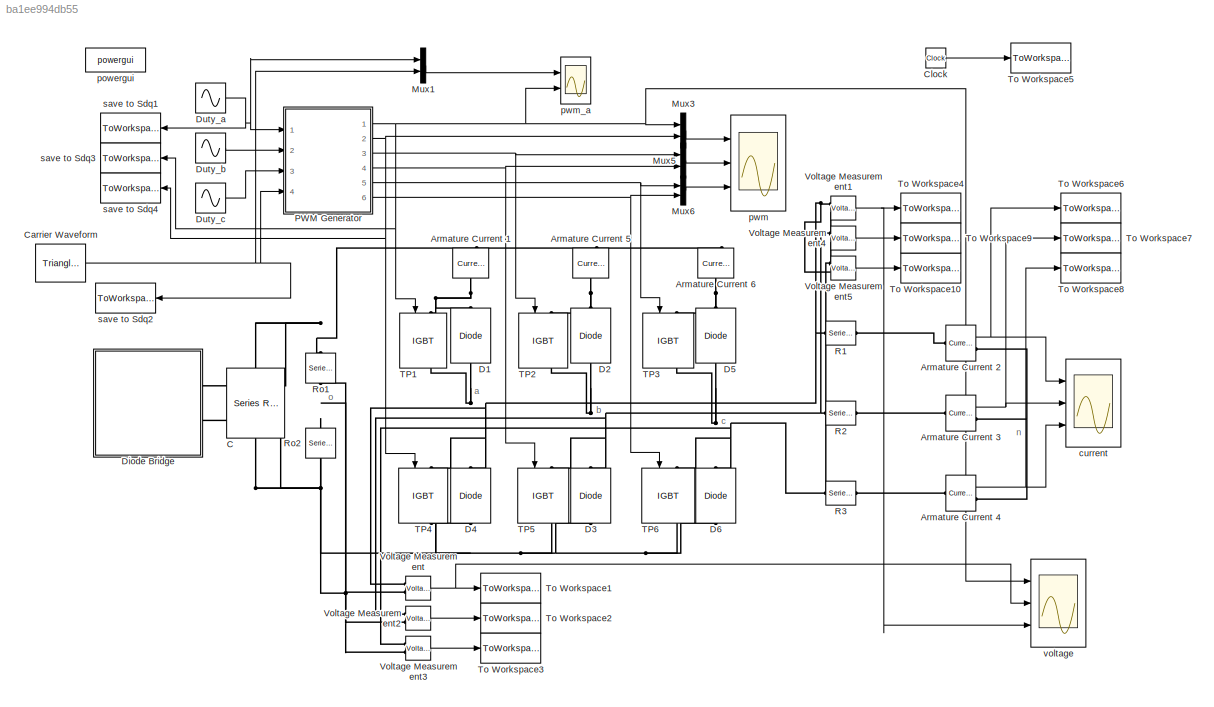
MODEL slx_ba1ee994db55
KIND model
CONFIG AbsTol = auto
CONFIG EnableMultiTasking = on
CONFIG FixedStep = auto
CONFIG MaxStep = auto
CONFIG MinStep = auto
CONFIG RelTol = 1e-3
CONFIG SampleTimeConstraint = Unconstrained
CONFIG SolverName = ode23tb
CONFIG StartTime = 0.0
CONFIG StopTime = 0.2
BLOCK [Reference] Armature Current 1  REF=powerlib/Measurements/Current Measurement
  AttributesFormatString = \n
  NameLocation = left
  Ports = [0, 1, 0, 0, 0, 1, 1]
  SourceBlock = powerlib/Measurements/Current Measurement
  SourceProductBaseCode = PS
  SourceType = Current Measurement
  Tag = PoWeRsYsTeMmEaSuReMeNt
BLOCK [Reference] Armature Current 2  REF=powerlib/Measurements/Current Measurement
  AttributesFormatString = \n
  Ports = [0, 1, 0, 0, 0, 1, 1]
  SourceBlock = powerlib/Measurements/Current Measurement
  SourceProductBaseCode = PS
  SourceType = Current Measurement
  Tag = PoWeRsYsTeMmEaSuReMeNt
BLOCK [Reference] Armature Current 3  REF=powerlib/Measurements/Current Measurement
  AttributesFormatString = \n
  Ports = [0, 1, 0, 0, 0, 1, 1]
  SourceBlock = powerlib/Measurements/Current Measurement
  SourceProductBaseCode = PS
  SourceType = Current Measurement
  Tag = PoWeRsYsTeMmEaSuReMeNt
BLOCK [Reference] Armature Current 4  REF=powerlib/Measurements/Current Measurement
  AttributesFormatString = \n
  Ports = [0, 1, 0, 0, 0, 1, 1]
  SourceBlock = powerlib/Measurements/Current Measurement
  SourceProductBaseCode = PS
  SourceType = Current Measurement
  Tag = PoWeRsYsTeMmEaSuReMeNt
BLOCK [Reference] Armature Current 5  REF=powerlib/Measurements/Current Measurement
  AttributesFormatString = \n
  NameLocation = left
  Ports = [0, 1, 0, 0, 0, 1, 1]
  SourceBlock = powerlib/Measurements/Current Measurement
  SourceProductBaseCode = PS
  SourceType = Current Measurement
  Tag = PoWeRsYsTeMmEaSuReMeNt
BLOCK [Reference] Armature Current 6  REF=powerlib/Measurements/Current Measurement
  AttributesFormatString = \n
  NameLocation = left
  Ports = [0, 1, 0, 0, 0, 1, 1]
  SourceBlock = powerlib/Measurements/Current Measurement
  SourceProductBaseCode = PS
  SourceType = Current Measurement
  Tag = PoWeRsYsTeMmEaSuReMeNt
BLOCK [Reference] C  REF=powerlib/Elements/Series RLC Branch
  NameLocation = left
  Ports = [0, 0, 0, 0, 0, 1, 1]
  SourceBlock = powerlib/Elements/Series RLC Branch
  SourceProductBaseCode = PS
  SourceType = Series RLC Branch
BLOCK [Reference] Carrier Waveform  REF=powerlib_meascontrol/Pulse & Signal
Generators/Triangle
Generator
  Ports = [0, 1]
  SourceBlock = powerlib_meascontrol/Pulse & Signal\nGenerators/Triangle\nGenerator
  SourceProductBaseCode = PS
  SourceType = Triangle Generator
BLOCK [Clock] Clock
BLOCK [Reference] D1  REF=powerlib/Power
Electronics/Diode
  NameLocation = left
  Ports = [0, 0, 0, 0, 0, 1, 1]
  SourceBlock = powerlib/Power\nElectronics/Diode
  SourceProductBaseCode = PS
  SourceType = Diode
BLOCK [Reference] D2  REF=powerlib/Power
Electronics/Diode
  NameLocation = left
  Ports = [0, 0, 0, 0, 0, 1, 1]
  SourceBlock = powerlib/Power\nElectronics/Diode
  SourceProductBaseCode = PS
  SourceType = Diode
BLOCK [Reference] D3  REF=powerlib/Power
Electronics/Diode
  NameLocation = left
  Ports = [0, 0, 0, 0, 0, 1, 1]
  SourceBlock = powerlib/Power\nElectronics/Diode
  SourceProductBaseCode = PS
  SourceType = Diode
BLOCK [Reference] D4  REF=powerlib/Power
Electronics/Diode
  NameLocation = left
  Ports = [0, 0, 0, 0, 0, 1, 1]
  SourceBlock = powerlib/Power\nElectronics/Diode
  SourceProductBaseCode = PS
  SourceType = Diode
BLOCK [Reference] D5  REF=powerlib/Power
Electronics/Diode
  NameLocation = left
  Ports = [0, 0, 0, 0, 0, 1, 1]
  SourceBlock = powerlib/Power\nElectronics/Diode
  SourceProductBaseCode = PS
  SourceType = Diode
BLOCK [Reference] D6  REF=powerlib/Power
Electronics/Diode
  NameLocation = left
  Ports = [0, 0, 0, 0, 0, 1, 1]
  SourceBlock = powerlib/Power\nElectronics/Diode
  SourceProductBaseCode = PS
  SourceType = Diode
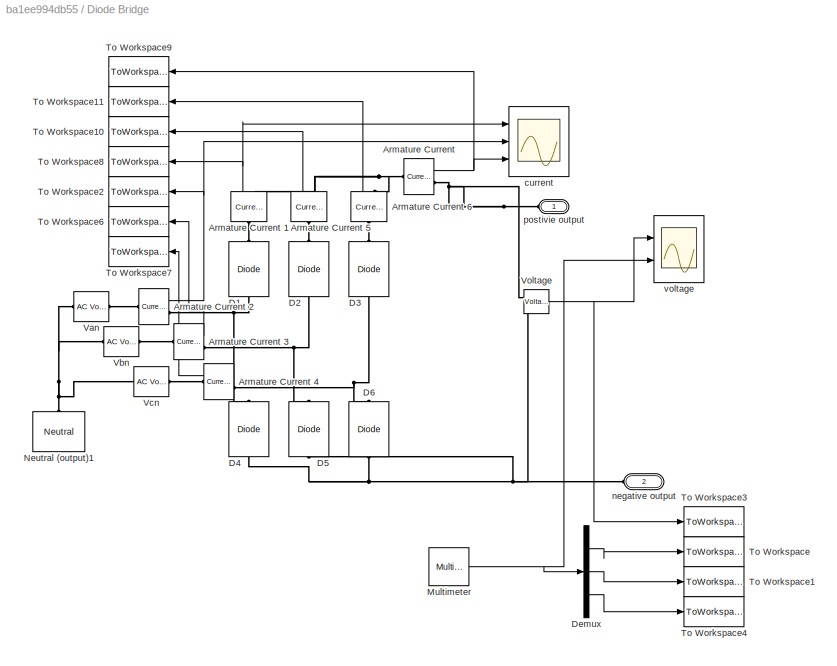
BLOCK [SubSystem] Diode Bridge
  Ports = [0, 0, 0, 0, 0, 2]
  RequestExecContextInheritance = off
BLOCK [Reference] Diode Bridge/Armature Current   REF=powerlib/Measurements/Current Measurement
  AttributesFormatString = \n
  Ports = [0, 1, 0, 0, 0, 1, 1]
  SourceBlock = powerlib/Measurements/Current Measurement
  SourceProductBaseCode = PS
  SourceType = Current Measurement
  Tag = PoWeRsYsTeMmEaSuReMeNt
BLOCK [Reference] Diode Bridge/Armature Current 1  REF=powerlib/Measurements/Current Measurement
  AttributesFormatString = \n
  NameLocation = left
  Ports = [0, 1, 0, 0, 0, 1, 1]
  SourceBlock = powerlib/Measurements/Current Measurement
  SourceProductBaseCode = PS
  SourceType = Current Measurement
  Tag = PoWeRsYsTeMmEaSuReMeNt
BLOCK [Reference] Diode Bridge/Armature Current 2  REF=powerlib/Measurements/Current Measurement
  AttributesFormatString = \n
  Ports = [0, 1, 0, 0, 0, 1, 1]
  SourceBlock = powerlib/Measurements/Current Measurement
  SourceProductBaseCode = PS
  SourceType = Current Measurement
  Tag = PoWeRsYsTeMmEaSuReMeNt
BLOCK [Reference] Diode Bridge/Armature Current 3  REF=powerlib/Measurements/Current Measurement
  AttributesFormatString = \n
  Ports = [0, 1, 0, 0, 0, 1, 1]
  SourceBlock = powerlib/Measurements/Current Measurement
  SourceProductBaseCode = PS
  SourceType = Current Measurement
  Tag = PoWeRsYsTeMmEaSuReMeNt
BLOCK [Reference] Diode Bridge/Armature Current 4  REF=powerlib/Measurements/Current Measurement
  AttributesFormatString = \n
  Ports = [0, 1, 0, 0, 0, 1, 1]
  SourceBlock = powerlib/Measurements/Current Measurement
  SourceProductBaseCode = PS
  SourceType = Current Measurement
  Tag = PoWeRsYsTeMmEaSuReMeNt
BLOCK [Reference] Diode Bridge/Armature Current 5  REF=powerlib/Measurements/Current Measurement
  AttributesFormatString = \n
  NameLocation = left
  Ports = [0, 1, 0, 0, 0, 1, 1]
  SourceBlock = powerlib/Measurements/Current Measurement
  SourceProductBaseCode = PS
  SourceType = Current Measurement
  Tag = PoWeRsYsTeMmEaSuReMeNt
BLOCK [Reference] Diode Bridge/Armature Current 6  REF=powerlib/Measurements/Current Measurement
  AttributesFormatString = \n
  NameLocation = left
  Ports = [0, 1, 0, 0, 0, 1, 1]
  SourceBlock = powerlib/Measurements/Current Measurement
  SourceProductBaseCode = PS
  SourceType = Current Measurement
  Tag = PoWeRsYsTeMmEaSuReMeNt
BLOCK [Reference] Diode Bridge/D1  REF=powerlib/Power
Electronics/Diode
  NameLocation = left
  Ports = [0, 0, 0, 0, 0, 1, 1]
  SourceBlock = powerlib/Power\nElectronics/Diode
  SourceProductBaseCode = PS
  SourceType = Diode
BLOCK [Reference] Diode Bridge/D2  REF=powerlib/Power
Electronics/Diode
  NameLocation = left
  Ports = [0, 0, 0, 0, 0, 1, 1]
  SourceBlock = powerlib/Power\nElectronics/Diode
  SourceProductBaseCode = PS
  SourceType = Diode
BLOCK [Reference] Diode Bridge/D3  REF=powerlib/Power
Electronics/Diode
  NameLocation = left
  Ports = [0, 0, 0, 0, 0, 1, 1]
  SourceBlock = powerlib/Power\nElectronics/Diode
  SourceProductBaseCode = PS
  SourceType = Diode
BLOCK [Reference] Diode Bridge/D4  REF=powerlib/Power
Electronics/Diode
  NameLocation = left
  Ports = [0, 0, 0, 0, 0, 1, 1]
  SourceBlock = powerlib/Power\nElectronics/Diode
  SourceProductBaseCode = PS
  SourceType = Diode
BLOCK [Reference] Diode Bridge/D5  REF=powerlib/Power
Electronics/Diode
  NameLocation = left
  Ports = [0, 0, 0, 0, 0, 1, 1]
  SourceBlock = powerlib/Power\nElectronics/Diode
  SourceProductBaseCode = PS
  SourceType = Diode
BLOCK [Reference] Diode Bridge/D6  REF=powerlib/Power
Electronics/Diode
  NameLocation = left
  Ports = [0, 0, 0, 0, 0, 1, 1]
  SourceBlock = powerlib/Power\nElectronics/Diode
  SourceProductBaseCode = PS
  SourceType = Diode
BLOCK [Demux] Diode Bridge/Demux
  DisplayOption = none
  Outputs = 3
  Ports = [1, 3]
BLOCK [Reference] Diode Bridge/Multimeter  REF=powerlib/Measurements/Multimeter
  Ports = [0, 1]
  SourceBlock = powerlib/Measurements/Multimeter
  SourceProductBaseCode = PS
  SourceType = MultimeterPSB
BLOCK [Reference] Diode Bridge/Neutral (output)1  REF=powerlib/Elements/Neutral
  AttributesFormatString = node %<NodeNumber>
  NameLocation = right
  Ports = [0, 0, 0, 0, 0, 1]
  SourceBlock = powerlib/Elements/Neutral
  SourceProductBaseCode = PS
  SourceType = Neutral
BLOCK [ToWorkspace] Diode Bridge/To Workspace
  MaxDataPoints = inf
  Ports = [1]
  SampleTime = 1e-4
  VariableName = Ean
BLOCK [ToWorkspace] Diode Bridge/To Workspace1
  MaxDataPoints = inf
  Ports = [1]
  SampleTime = 1e-4
  VariableName = Ebn
BLOCK [ToWorkspace] Diode Bridge/To Workspace10
  MaxDataPoints = inf
  Ports = [1]
  SampleTime = 1e-4
  VariableName = ID2
BLOCK [ToWorkspace] Diode Bridge/To Workspace11
  MaxDataPoints = inf
  Ports = [1]
  SampleTime = 1e-4
  VariableName = ID3
BLOCK [ToWorkspace] Diode Bridge/To Workspace2
  MaxDataPoints = inf
  Ports = [1]
  SampleTime = 1e-4
  VariableName = Ia
BLOCK [ToWorkspace] Diode Bridge/To Workspace3
  MaxDataPoints = inf
  Ports = [1]
  SampleTime = 1e-4
  VariableName = Vdc
BLOCK [ToWorkspace] Diode Bridge/To Workspace4
  MaxDataPoints = inf
  Ports = [1]
  SampleTime = 1e-4
  VariableName = Ecn
BLOCK [ToWorkspace] Diode Bridge/To Workspace6
  MaxDataPoints = inf
  Ports = [1]
  SampleTime = 1e-4
  VariableName = Ib
BLOCK [ToWorkspace] Diode Bridge/To Workspace7
  MaxDataPoints = inf
  Ports = [1]
  SampleTime = 1e-4
  VariableName = Ic
BLOCK [ToWorkspace] Diode Bridge/To Workspace8
  MaxDataPoints = inf
  Ports = [1]
  SampleTime = 1e-4
  VariableName = ID1
BLOCK [ToWorkspace] Diode Bridge/To Workspace9
  MaxDataPoints = inf
  Ports = [1]
  SampleTime = 1e-4
  VariableName = Idc
BLOCK [Reference] Diode Bridge/Van  REF=powerlib/Electrical
Sources/AC Voltage Source
  AttributesFormatString = \n
  Description = source block
  Ports = [0, 0, 0, 0, 0, 1, 1]
  SourceBlock = powerlib/Electrical\nSources/AC Voltage Source
  SourceProductBaseCode = PS
  SourceType = AC Voltage Source
BLOCK [Reference] Diode Bridge/Vbn  REF=powerlib/Electrical
Sources/AC Voltage Source
  AttributesFormatString = \n
  Description = source block
  Ports = [0, 0, 0, 0, 0, 1, 1]
  SourceBlock = powerlib/Electrical\nSources/AC Voltage Source
  SourceProductBaseCode = PS
  SourceType = AC Voltage Source
BLOCK [Reference] Diode Bridge/Vcn  REF=powerlib/Electrical
Sources/AC Voltage Source
  AttributesFormatString = \n
  Description = source block
  Ports = [0, 0, 0, 0, 0, 1, 1]
  SourceBlock = powerlib/Electrical\nSources/AC Voltage Source
  SourceProductBaseCode = PS
  SourceType = AC Voltage Source
BLOCK [Reference] Diode Bridge/Voltage   REF=powerlib/Measurements/Voltage Measurement
  Ports = [0, 1, 0, 0, 0, 2]
  SourceBlock = powerlib/Measurements/Voltage Measurement
  SourceProductBaseCode = PS
  SourceType = Voltage Measurement
BLOCK [Scope] Diode Bridge/current
  Floating = off
  NumInputPorts = 3
  Ports = [3]
  ScopeSpecificationString = Simulink.scopes.TimeScopeBlockCfg('CurrentConfiguration', extmgr.ConfigurationSet(extmgr.Configuration('Core','General UI',true),extmgr.Configuration('Core','Source UI',true),extmgr.Configuration('Sources','WiredSimulink',true,'DataLoggingVariableName','ScopeData1','DataLoggingSaveFormat','StructureWithTime','DataLoggingDecimation','1','DataLoggingDecimateData',true),extmgr.Configuration('Visuals'...<+2992ch>
BLOCK [PMIOPort] Diode Bridge/negative output
  Port = 2
  Side = Left
BLOCK [PMIOPort] Diode Bridge/postivie output
  Side = Left
BLOCK [Scope] Diode Bridge/voltage
  Floating = off
  NumInputPorts = 2
  Ports = [2]
  ScopeSpecificationString = Simulink.scopes.TimeScopeBlockCfg('CurrentConfiguration', extmgr.ConfigurationSet(extmgr.Configuration('Core','General UI',true),extmgr.Configuration('Core','Source UI',true),extmgr.Configuration('Sources','WiredSimulink',true,'DataLoggingSaveFormat','StructureWithTime','DataLoggingDecimation','1','DataLoggingDecimateData',true),extmgr.Configuration('Visuals','Time Domain',true,'SerializedDisplays...<+2287ch>
BLOCK [Sin] Duty_a
  Amplitude = 0.5
  Frequency = 200*pi
  Ports = [0, 1]
  SampleTime = 0
BLOCK [Sin] Duty_b
  Amplitude = 0.5
  Frequency = 200*pi
  Phase = -2*pi/3
  Ports = [0, 1]
  SampleTime = 0
BLOCK [Sin] Duty_c
  Amplitude = 0.5
  Frequency = 200*pi
  Phase = 2*pi/3
  Ports = [0, 1]
  SampleTime = 0
BLOCK [Mux] Mux1
  DisplayOption = bar
  Inputs = 2
  Ports = [2, 1]
BLOCK [Mux] Mux3
  DisplayOption = bar
  Inputs = 2
  Ports = [2, 1]
BLOCK [Mux] Mux5
  DisplayOption = bar
  Inputs = 2
  Ports = [2, 1]
BLOCK [Mux] Mux6
  DisplayOption = bar
  Inputs = 2
  Ports = [2, 1]
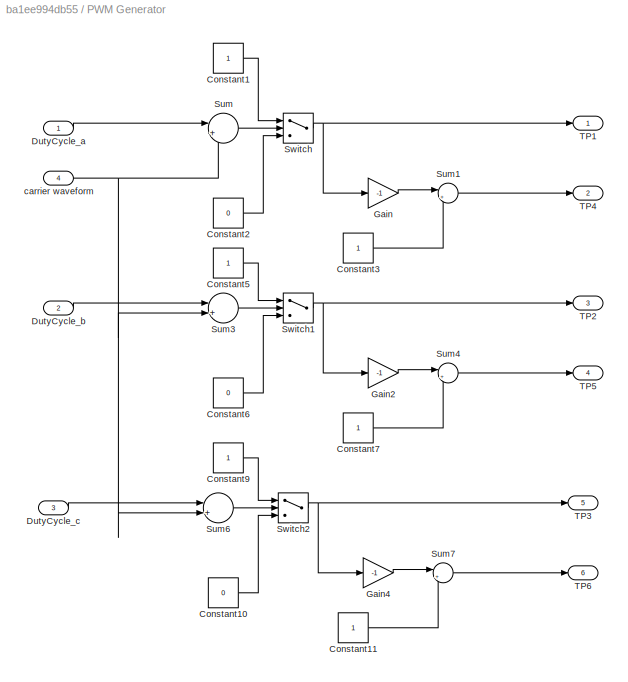
BLOCK [SubSystem] PWM Generator
  Ports = [4, 6]
  RequestExecContextInheritance = off
BLOCK [Constant] PWM Generator/Constant1
BLOCK [Constant] PWM Generator/Constant10
  Value = 0
BLOCK [Constant] PWM Generator/Constant11
BLOCK [Constant] PWM Generator/Constant2
  Value = 0
BLOCK [Constant] PWM Generator/Constant3
BLOCK [Constant] PWM Generator/Constant5
BLOCK [Constant] PWM Generator/Constant6
  Value = 0
BLOCK [Constant] PWM Generator/Constant7
BLOCK [Constant] PWM Generator/Constant9
BLOCK [Inport] PWM Generator/DutyCycle_a
BLOCK [Inport] PWM Generator/DutyCycle_b
  Port = 2
BLOCK [Inport] PWM Generator/DutyCycle_c
  Port = 3
BLOCK [Gain] PWM Generator/Gain
  Gain = -1
  OutDataTypeStr = Inherit: Same as input
  ParamDataTypeStr = Inherit: Same as input
  SaturateOnIntegerOverflow = on
BLOCK [Gain] PWM Generator/Gain2
  Gain = -1
  OutDataTypeStr = Inherit: Same as input
  ParamDataTypeStr = Inherit: Same as input
  SaturateOnIntegerOverflow = on
BLOCK [Gain] PWM Generator/Gain4
  Gain = -1
  OutDataTypeStr = Inherit: Same as input
  ParamDataTypeStr = Inherit: Same as input
  SaturateOnIntegerOverflow = on
BLOCK [Sum] PWM Generator/Sum
  Inputs = |+-
  Ports = [2, 1]
  SaturateOnIntegerOverflow = on
BLOCK [Sum] PWM Generator/Sum1
  Inputs = |++
  Ports = [2, 1]
  SaturateOnIntegerOverflow = on
BLOCK [Sum] PWM Generator/Sum3
  Inputs = |+-
  Ports = [2, 1]
  SaturateOnIntegerOverflow = on
BLOCK [Sum] PWM Generator/Sum4
  Inputs = |++
  Ports = [2, 1]
  SaturateOnIntegerOverflow = on
BLOCK [Sum] PWM Generator/Sum6
  Inputs = |+-
  Ports = [2, 1]
  SaturateOnIntegerOverflow = on
BLOCK [Sum] PWM Generator/Sum7
  Inputs = |++
  Ports = [2, 1]
  SaturateOnIntegerOverflow = on
BLOCK [Switch] PWM Generator/Switch
  Criteria = u2 > Threshold
  InputSameDT = off
BLOCK [Switch] PWM Generator/Switch1
  Criteria = u2 > Threshold
  InputSameDT = off
BLOCK [Switch] PWM Generator/Switch2
  Criteria = u2 > Threshold
  InputSameDT = off
BLOCK [Outport] PWM Generator/TP1
BLOCK [Outport] PWM Generator/TP2
  Port = 3
BLOCK [Outport] PWM Generator/TP3
  Port = 5
BLOCK [Outport] PWM Generator/TP4
  Port = 2
BLOCK [Outport] PWM Generator/TP5
  Port = 4
BLOCK [Outport] PWM Generator/TP6
  Port = 6
BLOCK [Inport] PWM Generator/carrier waveform
  Port = 4
BLOCK [Reference] R1  REF=powerlib/Elements/Series RLC Branch
  NameLocation = top
  Ports = [0, 0, 0, 0, 0, 1, 1]
  SourceBlock = powerlib/Elements/Series RLC Branch
  SourceProductBaseCode = PS
  SourceType = Series RLC Branch
BLOCK [Reference] R2  REF=powerlib/Elements/Series RLC Branch
  NameLocation = top
  Ports = [0, 0, 0, 0, 0, 1, 1]
  SourceBlock = powerlib/Elements/Series RLC Branch
  SourceProductBaseCode = PS
  SourceType = Series RLC Branch
BLOCK [Reference] R3  REF=powerlib/Elements/Series RLC Branch
  NameLocation = top
  Ports = [0, 0, 0, 0, 0, 1, 1]
  SourceBlock = powerlib/Elements/Series RLC Branch
  SourceProductBaseCode = PS
  SourceType = Series RLC Branch
BLOCK [Reference] Ro1  REF=powerlib/Elements/Series RLC Branch
  NameLocation = left
  Ports = [0, 0, 0, 0, 0, 1, 1]
  SourceBlock = powerlib/Elements/Series RLC Branch
  SourceProductBaseCode = PS
  SourceType = Series RLC Branch
BLOCK [Reference] Ro2  REF=powerlib/Elements/Series RLC Branch
  NameLocation = left
  Ports = [0, 0, 0, 0, 0, 1, 1]
  SourceBlock = powerlib/Elements/Series RLC Branch
  SourceProductBaseCode = PS
  SourceType = Series RLC Branch
BLOCK [Reference] TP1  REF=powerlib/Power
Electronics/IGBT
  NameLocation = left
  Ports = [1, 1, 0, 0, 0, 1, 1]
  SourceBlock = powerlib/Power\nElectronics/IGBT
  SourceProductBaseCode = PS
  SourceType = IGBT
BLOCK [Reference] TP2  REF=powerlib/Power
Electronics/IGBT
  NameLocation = left
  Ports = [1, 1, 0, 0, 0, 1, 1]
  SourceBlock = powerlib/Power\nElectronics/IGBT
  SourceProductBaseCode = PS
  SourceType = IGBT
BLOCK [Reference] TP3  REF=powerlib/Power
Electronics/IGBT
  NameLocation = left
  Ports = [1, 1, 0, 0, 0, 1, 1]
  SourceBlock = powerlib/Power\nElectronics/IGBT
  SourceProductBaseCode = PS
  SourceType = IGBT
BLOCK [Reference] TP4  REF=powerlib/Power
Electronics/IGBT
  NameLocation = left
  Ports = [1, 1, 0, 0, 0, 1, 1]
  SourceBlock = powerlib/Power\nElectronics/IGBT
  SourceProductBaseCode = PS
  SourceType = IGBT
BLOCK [Reference] TP5  REF=powerlib/Power
Electronics/IGBT
  NameLocation = left
  Ports = [1, 1, 0, 0, 0, 1, 1]
  SourceBlock = powerlib/Power\nElectronics/IGBT
  SourceProductBaseCode = PS
  SourceType = IGBT
BLOCK [Reference] TP6  REF=powerlib/Power
Electronics/IGBT
  NameLocation = left
  Ports = [1, 1, 0, 0, 0, 1, 1]
  SourceBlock = powerlib/Power\nElectronics/IGBT
  SourceProductBaseCode = PS
  SourceType = IGBT
BLOCK [ToWorkspace] To Workspace1
  MaxDataPoints = inf
  Ports = [1]
  SampleTime = 1e-5
  VariableName = Vao
BLOCK [ToWorkspace] To Workspace10
  MaxDataPoints = inf
  Ports = [1]
  SampleTime = 1e-5
  VariableName = Vca
BLOCK [ToWorkspace] To Workspace2
  MaxDataPoints = inf
  Ports = [1]
  SampleTime = 1e-5
  VariableName = Vbo
BLOCK [ToWorkspace] To Workspace3
  MaxDataPoints = inf
  Ports = [1]
  SampleTime = 1e-5
  VariableName = Vco
BLOCK [ToWorkspace] To Workspace4
  MaxDataPoints = inf
  Ports = [1]
  SampleTime = 1e-5
  VariableName = Vab
BLOCK [ToWorkspace] To Workspace5
  MaxDataPoints = inf
  Ports = [1]
  SampleTime = 1e-5
  VariableName = time
BLOCK [ToWorkspace] To Workspace6
  MaxDataPoints = inf
  Ports = [1]
  SampleTime = 1e-5
  VariableName = ia
BLOCK [ToWorkspace] To Workspace7
  MaxDataPoints = inf
  Ports = [1]
  SampleTime = 1e-5
  VariableName = ib
BLOCK [ToWorkspace] To Workspace8
  MaxDataPoints = inf
  Ports = [1]
  SampleTime = 1e-5
  VariableName = ic
BLOCK [ToWorkspace] To Workspace9
  MaxDataPoints = inf
  Ports = [1]
  SampleTime = 1e-5
  VariableName = Vbc
BLOCK [Reference] Voltage Measurement  REF=powerlib/Measurements/Voltage Measurement
  Ports = [0, 1, 0, 0, 0, 2]
  SourceBlock = powerlib/Measurements/Voltage Measurement
  SourceProductBaseCode = PS
  SourceType = Voltage Measurement
BLOCK [Reference] Voltage Measurement1  REF=powerlib/Measurements/Voltage Measurement
  Ports = [0, 1, 0, 0, 0, 2]
  SourceBlock = powerlib/Measurements/Voltage Measurement
  SourceProductBaseCode = PS
  SourceType = Voltage Measurement
BLOCK [Reference] Voltage Measurement2  REF=powerlib/Measurements/Voltage Measurement
  Ports = [0, 1, 0, 0, 0, 2]
  SourceBlock = powerlib/Measurements/Voltage Measurement
  SourceProductBaseCode = PS
  SourceType = Voltage Measurement
BLOCK [Reference] Voltage Measurement3  REF=powerlib/Measurements/Voltage Measurement
  Ports = [0, 1, 0, 0, 0, 2]
  SourceBlock = powerlib/Measurements/Voltage Measurement
  SourceProductBaseCode = PS
  SourceType = Voltage Measurement
BLOCK [Reference] Voltage Measurement4  REF=powerlib/Measurements/Voltage Measurement
  Ports = [0, 1, 0, 0, 0, 2]
  SourceBlock = powerlib/Measurements/Voltage Measurement
  SourceProductBaseCode = PS
  SourceType = Voltage Measurement
BLOCK [Reference] Voltage Measurement5  REF=powerlib/Measurements/Voltage Measurement
  Ports = [0, 1, 0, 0, 0, 2]
  SourceBlock = powerlib/Measurements/Voltage Measurement
  SourceProductBaseCode = PS
  SourceType = Voltage Measurement
BLOCK [Scope] current
  Floating = off
  NumInputPorts = 3
  Ports = [3]
  ScopeSpecificationString = Simulink.scopes.TimeScopeBlockCfg('CurrentConfiguration', extmgr.ConfigurationSet(extmgr.Configuration('Core','General UI',true),extmgr.Configuration('Core','Source UI',true),extmgr.Configuration('Sources','WiredSimulink',true,'DataLogging',true,'DataLoggingVariableName','PhaseCurrent','DataLoggingSaveFormat','StructureWithTime','DataLoggingDecimation','1','DataLoggingDecimateData',true),extmgr.Co...<+3092ch>
BLOCK [Reference] powergui  REF=powerlib/powergui
  Ports = []
  SourceBlock = powerlib/powergui
  SourceProductBaseCode = PS
  SourceType = PSB option menu block
BLOCK [Scope] pwm
  Floating = off
  NameLocation = top
  NumInputPorts = 3
  Ports = [3]
  ScopeSpecificationString = Simulink.scopes.TimeScopeBlockCfg('CurrentConfiguration', extmgr.ConfigurationSet(extmgr.Configuration('Core','General UI',true),extmgr.Configuration('Core','Source UI',true),extmgr.Configuration('Sources','WiredSimulink',true,'DataLoggingVariableName','pwmsignal','DataLoggingSaveFormat','StructureWithTime','DataLoggingDecimation','1','DataLoggingDecimateData',true),extmgr.Configuration('Visuals',...<+3107ch>
BLOCK [Scope] pwm_a
  Floating = off
  NameLocation = top
  NumInputPorts = 2
  Ports = [2]
  ScopeSpecificationString = Simulink.scopes.TimeScopeBlockCfg('CurrentConfiguration', extmgr.ConfigurationSet(extmgr.Configuration('Core','General UI',true),extmgr.Configuration('Core','Source UI',true),extmgr.Configuration('Sources','WiredSimulink',true,'DataLoggingVariableName','pwmsignal1','DataLoggingSaveFormat','StructureWithTime','DataLoggingDecimation','1','DataLoggingDecimateData',true),extmgr.Configuration('Visuals'...<+2393ch>
BLOCK [ToWorkspace] save to Sdq1
  MaxDataPoints = inf
  Ports = [1]
  SampleTime = 1e-5
  VariableName = dutya
BLOCK [ToWorkspace] save to Sdq2
  MaxDataPoints = inf
  Ports = [1]
  SampleTime = 1e-5
  VariableName = carrier
BLOCK [ToWorkspace] save to Sdq3
  MaxDataPoints = inf
  Ports = [1]
  SampleTime = 1e-5
  VariableName = TP1
BLOCK [ToWorkspace] save to Sdq4
  MaxDataPoints = inf
  Ports = [1]
  SampleTime = 1e-5
  VariableName = TP4
BLOCK [Scope] voltage
  Floating = off
  NumInputPorts = 3
  Ports = [3]
  ScopeSpecificationString = Simulink.scopes.TimeScopeBlockCfg('CurrentConfiguration', extmgr.ConfigurationSet(extmgr.Configuration('Core','General UI',true),extmgr.Configuration('Core','Source UI',true),extmgr.Configuration('Sources','WiredSimulink',true,'DataLogging',true,'DataLoggingVariableName','LineVoltage','DataLoggingSaveFormat','StructureWithTime','DataLoggingDecimation','1','DataLoggingDecimateData',true),extmgr.Con...<+3054ch>
ANNOTATION (root): a
ANNOTATION (root): b
ANNOTATION (root): c
ANNOTATION (root): n
ANNOTATION (root): o
NET Armature Current 2:1 -> To Workspace6:1, current:1
NET Armature Current 3:1 -> To Workspace7:1, current:2
NET Armature Current 4:1 -> To Workspace8:1, current:3
NET Carrier Waveform:1 -> Mux1:2, PWM Generator:4, save to Sdq2:1
LINE Clock:1 -> To Workspace5:1
NET Diode Bridge/Armature Current 1:1 -> Diode Bridge/To Workspace8:1, Diode Bridge/current:1
NET Diode Bridge/Armature Current 2:1 -> Diode Bridge/To Workspace2:1, Diode Bridge/current:2
LINE Diode Bridge/Armature Current 3:1 -> Diode Bridge/To Workspace6:1
LINE Diode Bridge/Armature Current 4:1 -> Diode Bridge/To Workspace7:1
LINE Diode Bridge/Armature Current 5:1 -> Diode Bridge/To Workspace10:1
LINE Diode Bridge/Armature Current 6:1 -> Diode Bridge/To Workspace11:1
NET Diode Bridge/Armature Current :1 -> Diode Bridge/To Workspace9:1, Diode Bridge/current:3
LINE Diode Bridge/Demux:1 -> Diode Bridge/To Workspace:1
LINE Diode Bridge/Demux:2 -> Diode Bridge/To Workspace1:1
LINE Diode Bridge/Demux:3 -> Diode Bridge/To Workspace4:1
NET Diode Bridge/Multimeter:1 -> Diode Bridge/Demux:1, Diode Bridge/voltage:2
NET Diode Bridge/Voltage :1 -> Diode Bridge/To Workspace3:1, Diode Bridge/voltage:1
NET Duty_a:1 -> Mux1:1, PWM Generator:1, save to Sdq1:1
LINE Duty_b:1 -> PWM Generator:2
LINE Duty_c:1 -> PWM Generator:3
LINE Mux1:1 -> pwm_a:1
LINE Mux3:1 -> pwm:1
LINE Mux5:1 -> pwm:2
LINE Mux6:1 -> pwm:3
LINE PWM Generator/Constant10:1 -> PWM Generator/Switch2:3
LINE PWM Generator/Constant11:1 -> PWM Generator/Sum7:2
LINE PWM Generator/Constant1:1 -> PWM Generator/Switch:1
LINE PWM Generator/Constant2:1 -> PWM Generator/Switch:3
LINE PWM Generator/Constant3:1 -> PWM Generator/Sum1:2
LINE PWM Generator/Constant5:1 -> PWM Generator/Switch1:1
LINE PWM Generator/Constant6:1 -> PWM Generator/Switch1:3
LINE PWM Generator/Constant7:1 -> PWM Generator/Sum4:2
LINE PWM Generator/Constant9:1 -> PWM Generator/Switch2:1
LINE PWM Generator/DutyCycle_a:1 -> PWM Generator/Sum:1
LINE PWM Generator/DutyCycle_b:1 -> PWM Generator/Sum3:1
LINE PWM Generator/DutyCycle_c:1 -> PWM Generator/Sum6:1
LINE PWM Generator/Gain2:1 -> PWM Generator/Sum4:1
LINE PWM Generator/Gain4:1 -> PWM Generator/Sum7:1
LINE PWM Generator/Gain:1 -> PWM Generator/Sum1:1
LINE PWM Generator/Sum1:1 -> PWM Generator/TP4:1
LINE PWM Generator/Sum3:1 -> PWM Generator/Switch1:2
LINE PWM Generator/Sum4:1 -> PWM Generator/TP5:1
LINE PWM Generator/Sum6:1 -> PWM Generator/Switch2:2
LINE PWM Generator/Sum7:1 -> PWM Generator/TP6:1
LINE PWM Generator/Sum:1 -> PWM Generator/Switch:2
NET PWM Generator/Switch1:1 -> PWM Generator/Gain2:1, PWM Generator/TP2:1
NET PWM Generator/Switch2:1 -> PWM Generator/Gain4:1, PWM Generator/TP3:1
NET PWM Generator/Switch:1 -> PWM Generator/Gain:1, PWM Generator/TP1:1
NET PWM Generator/carrier waveform:1 -> PWM Generator/Sum3:2, PWM Generator/Sum6:2, PWM Generator/Sum:2
NET PWM Generator:1 -> Mux3:1, TP1:1, pwm_a:2, save to Sdq3:1, voltage:1
NET PWM Generator:2 -> Mux3:2, TP4:1, save to Sdq4:1
NET PWM Generator:3 -> Mux5:1, TP2:1
NET PWM Generator:4 -> Mux5:2, TP5:1
NET PWM Generator:5 -> Mux6:1, TP3:1
NET PWM Generator:6 -> Mux6:2, TP6:1
NET Voltage Measurement1:1 -> To Workspace4:1, voltage:3
LINE Voltage Measurement2:1 -> To Workspace2:1
LINE Voltage Measurement3:1 -> To Workspace3:1
LINE Voltage Measurement4:1 -> To Workspace9:1
LINE Voltage Measurement5:1 -> To Workspace10:1
NET Voltage Measurement:1 -> To Workspace1:1, voltage:2
PNET net1: Armature Current 1:LConn1 -- D1:RConn1 -- TP1:LConn1
PNET net2: Armature Current 1:RConn1 -- Armature Current 5:RConn1 -- Armature Current 6:RConn1 -- C:LConn1 -- Diode Bridge:LConn1 -- Ro1:LConn1
PLINE Armature Current 2:LConn1 -- R1:LConn1
PNET net3: Armature Current 2:RConn1 -- Armature Current 3:RConn1 -- Armature Current 4:RConn1
PLINE Armature Current 3:LConn1 -- R2:LConn1
PLINE Armature Current 4:LConn1 -- R3:LConn1
PNET net4: Armature Current 5:LConn1 -- D2:RConn1 -- TP2:LConn1
PNET net5: Armature Current 6:LConn1 -- D5:RConn1 -- TP3:LConn1
PNET net6: C:RConn1 -- D3:LConn1 -- D4:LConn1 -- D6:LConn1 -- Diode Bridge:LConn2 -- Ro2:RConn1 -- TP4:RConn1 -- TP5:RConn1 -- TP6:RConn1
PNET net7: D1:LConn1 -- D4:RConn1 -- R1:RConn1 -- TP1:RConn1 -- TP4:LConn1 -- Voltage Measurement1:LConn1 -- Voltage Measurement5:LConn2 -- Voltage Measurement:LConn1
PNET net8: D2:LConn1 -- D3:RConn1 -- R2:RConn1 -- TP2:RConn1 -- TP5:LConn1 -- Voltage Measurement1:LConn2 -- Voltage Measurement2:LConn1 -- Voltage Measurement4:LConn1
PNET net9: D5:LConn1 -- D6:RConn1 -- R3:RConn1 -- TP3:RConn1 -- TP6:LConn1 -- Voltage Measurement3:LConn1 -- Voltage Measurement4:LConn2 -- Voltage Measurement5:LConn1
PLINE Diode Bridge/Armature Current 1:LConn1 -- Diode Bridge/D1:RConn1
PNET net10: Diode Bridge/Armature Current 1:RConn1 -- Diode Bridge/Armature Current 5:RConn1 -- Diode Bridge/Armature Current 6:RConn1 -- Diode Bridge/Armature Current :LConn1
PLINE Diode Bridge/Armature Current 2:LConn1 -- Diode Bridge/Van:RConn1
PNET net11: Diode Bridge/Armature Current 2:RConn1 -- Diode Bridge/D1:LConn1 -- Diode Bridge/D4:RConn1
PLINE Diode Bridge/Armature Current 3:LConn1 -- Diode Bridge/Vbn:RConn1
PNET net12: Diode Bridge/Armature Current 3:RConn1 -- Diode Bridge/D2:LConn1 -- Diode Bridge/D5:RConn1
PLINE Diode Bridge/Armature Current 4:LConn1 -- Diode Bridge/Vcn:RConn1
PNET net13: Diode Bridge/Armature Current 4:RConn1 -- Diode Bridge/D3:LConn1 -- Diode Bridge/D6:RConn1
PLINE Diode Bridge/Armature Current 5:LConn1 -- Diode Bridge/D2:RConn1
PLINE Diode Bridge/Armature Current 6:LConn1 -- Diode Bridge/D3:RConn1
PNET net14: Diode Bridge/Armature Current :RConn1 -- Diode Bridge/Voltage :LConn1 -- Diode Bridge/postivie output:RConn1
PNET net15: Diode Bridge/D4:LConn1 -- Diode Bridge/D5:LConn1 -- Diode Bridge/D6:LConn1 -- Diode Bridge/Voltage :LConn2 -- Diode Bridge/negative output:RConn1
PNET net16: Diode Bridge/Neutral (output)1:LConn1 -- Diode Bridge/Van:LConn1 -- Diode Bridge/Vbn:LConn1 -- Diode Bridge/Vcn:LConn1
PNET net17: Ro1:RConn1 -- Ro2:LConn1 -- Voltage Measurement2:LConn2 -- Voltage Measurement3:LConn2 -- Voltage Measurement:LConn2
note: NET lines group one-source signal fan-out (src -> all destinations, sorted); 1:1 wires keep LINE; PNET lines group multi-terminal physical nets as a canonical sorted terminal list (undirected conserving connections); 2-terminal nets keep the pairwise PLINE form
